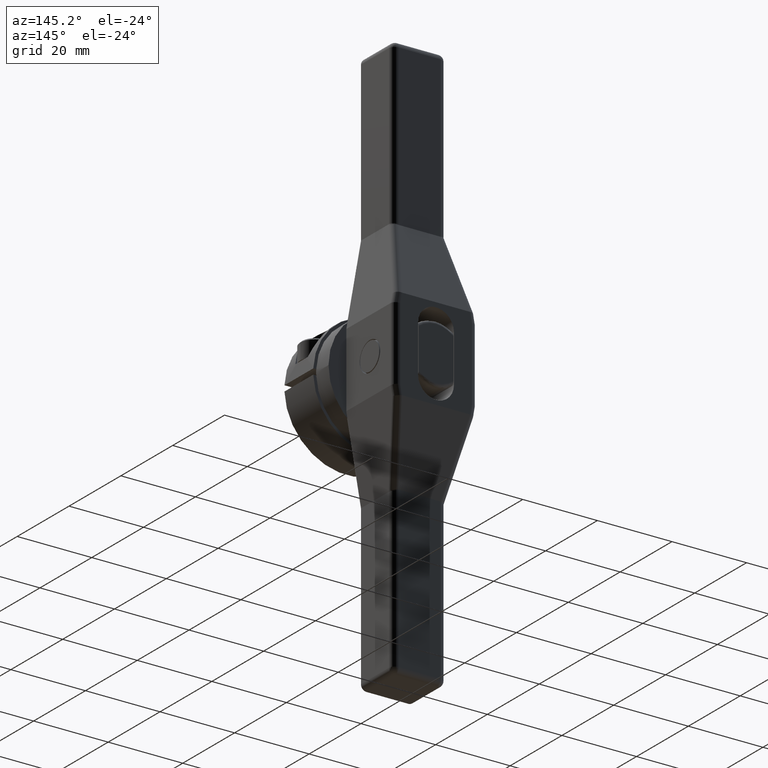
[diagram: clean part render]
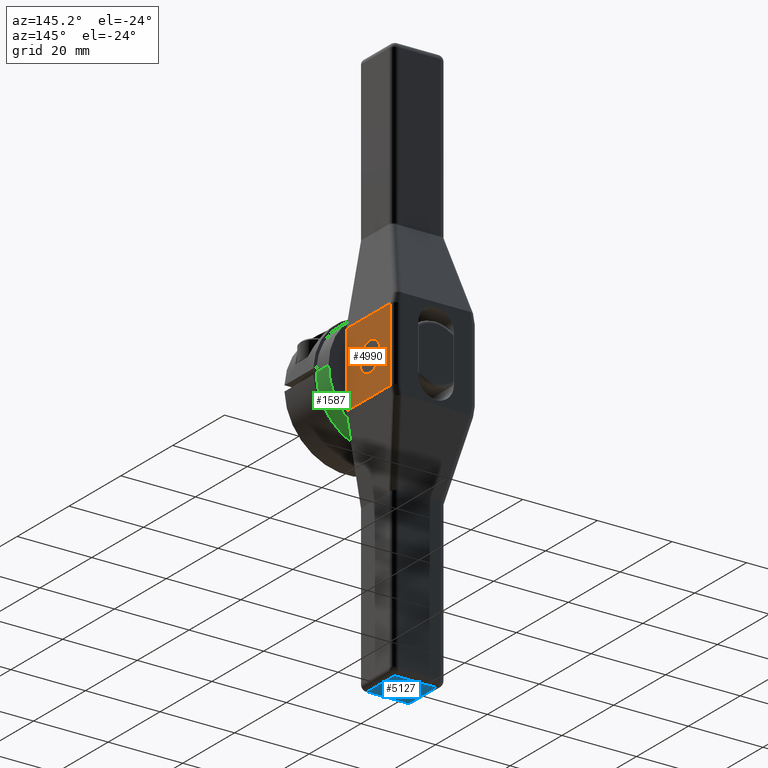
[diagram: same view with three faces highlighted in distinct colors, each labeled with its STEP entity id]
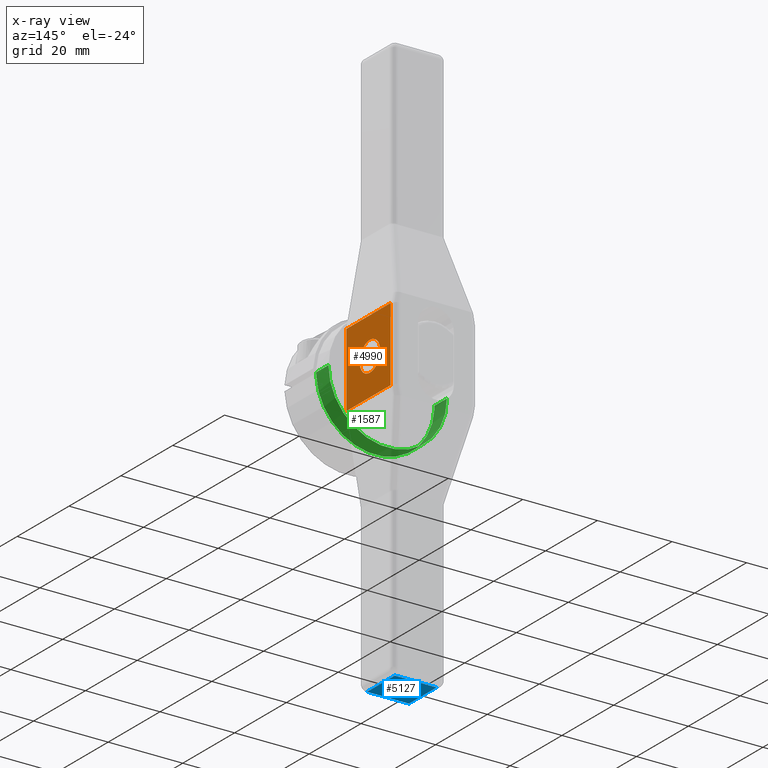
[diagram: x-ray of the same camera — body ghosted, the three highlighted faces saturated]
A machine part, auxiliary view with three faces highlighted in distinct colors.
The next image is the same camera in x-ray (body ghosted, the three faces saturated) — at least one of them is partly hidden behind the body in this view.
Their STEP definitions:

[orange] entity #4990 — the highlighted planar face has unit normal (-1, 0, 0).
#3066=DIRECTION('',(0.E0,0.E0,1.E0));
#3067=VECTOR('',#3066,7.797627586558E-1);
#3068=CARTESIAN_POINT('',(4.375E-1,2.E-2,-3.898813793279E-1));
#3069=LINE('',#3068,#3067);
#3296=DIRECTION('',(0.E0,1.E0,0.E0));
#3297=VECTOR('',#3296,6.7E-1);
#3298=CARTESIAN_POINT('',(4.375E-1,2.E-2,3.898813793279E-1));
#3299=LINE('',#3298,#3297);
#3491=DIRECTION('',(0.E0,0.E0,-1.E0));
#3492=VECTOR('',#3491,7.797627586558E-1);
#3493=CARTESIAN_POINT('',(4.375E-1,6.9E-1,3.898813793279E-1));
#3494=LINE('',#3493,#3492);
#3674=CARTESIAN_POINT('',(4.375E-1,3.75E-1,0.E0));
#3675=DIRECTION('',(1.E0,0.E0,0.E0));
#3676=DIRECTION('',(0.E0,0.E0,-1.E0));
#3677=AXIS2_PLACEMENT_3D('',#3674,#3675,#3676);
#3682=CARTESIAN_POINT('',(4.375E-1,3.75E-1,0.E0));
#3683=DIRECTION('',(1.E0,0.E0,0.E0));
#3684=DIRECTION('',(0.E0,0.E0,1.E0));
#3685=AXIS2_PLACEMENT_3D('',#3682,#3683,#3684);
#3690=DIRECTION('',(0.E0,1.E0,0.E0));
#3691=VECTOR('',#3690,6.7E-1);
#3692=CARTESIAN_POINT('',(4.375E-1,2.E-2,-3.898813793279E-1));
#3693=LINE('',#3692,#3691);
#3995=CARTESIAN_POINT('',(4.375E-1,3.75E-1,-1.5575E-1));
#3996=VERTEX_POINT('',#3995);
#3999=CARTESIAN_POINT('',(4.375E-1,3.75E-1,1.5575E-1));
#4000=VERTEX_POINT('',#3999);
#4072=CARTESIAN_POINT('',(4.375E-1,6.9E-1,-3.898813793279E-1));
#4073=VERTEX_POINT('',#4072);
#4076=CARTESIAN_POINT('',(4.375E-1,6.9E-1,3.898813793279E-1));
#4077=VERTEX_POINT('',#4076);
#4143=CARTESIAN_POINT('',(4.375E-1,2.E-2,-3.898813793279E-1));
#4144=VERTEX_POINT('',#4143);
#4147=CARTESIAN_POINT('',(4.375E-1,2.E-2,3.898813793279E-1));
#4148=VERTEX_POINT('',#4147);
#4974=CARTESIAN_POINT('',(4.375E-1,0.E0,3.898813793279E-1));
#4975=DIRECTION('',(-1.E0,0.E0,0.E0));
#4976=DIRECTION('',(0.E0,0.E0,-1.E0));
#4977=AXIS2_PLACEMENT_3D('',#4974,#4975,#4976);
#4978=PLANE('',#4977);
#4979=ORIENTED_EDGE('',*,*,#4521,.T.);
#4980=ORIENTED_EDGE('',*,*,#4684,.T.);
#4981=ORIENTED_EDGE('',*,*,#4828,.T.);
#4983=ORIENTED_EDGE('',*,*,#4982,.F.);
#4984=EDGE_LOOP('',(#4979,#4980,#4981,#4983));
#4985=FACE_OUTER_BOUND('',#4984,.F.);
#4986=ORIENTED_EDGE('',*,*,#4928,.T.);
#4987=ORIENTED_EDGE('',*,*,#4956,.T.);
#4988=EDGE_LOOP('',(#4986,#4987));
#4989=FACE_BOUND('',#4988,.F.);
#4990=ADVANCED_FACE('',(#4985,#4989),#4978,.F.);
#3678=CIRCLE('',#3677,1.5575E-1);
#3686=CIRCLE('',#3685,1.5575E-1);
#4521=EDGE_CURVE('',#4144,#4148,#3069,.T.);
#4684=EDGE_CURVE('',#4148,#4077,#3299,.T.);
#4828=EDGE_CURVE('',#4077,#4073,#3494,.T.);
#4928=EDGE_CURVE('',#3996,#4000,#3678,.T.);
#4956=EDGE_CURVE('',#4000,#3996,#3686,.T.);
#4982=EDGE_CURVE('',#4144,#4073,#3693,.T.);

[blue] entity #5127 — the highlighted planar face has unit normal (0, 0, -1).
#2948=DIRECTION('',(1.E0,0.E0,0.E0));
#2949=VECTOR('',#2948,4.419999999909E-1);
#2950=CARTESIAN_POINT('',(-2.209999999808E-1,2.E-2,-3.E0));
#2951=LINE('',#2950,#2949);
#3797=DIRECTION('',(-4.574065993693E-11,1.E0,0.E0));
#3798=VECTOR('',#3797,4.2E-1);
#3799=CARTESIAN_POINT('',(-2.209999999808E-1,2.E-2,-3.E0));
#3800=LINE('',#3799,#3798);
#3804=DIRECTION('',(-2.402159159418E-11,1.E0,0.E0));
#3805=VECTOR('',#3804,4.2E-1);
#3806=CARTESIAN_POINT('',(2.210000000101E-1,2.E-2,-3.E0));
#3807=LINE('',#3806,#3805);
#3869=DIRECTION('',(1.E0,0.E0,0.E0));
#3870=VECTOR('',#3869,4.42E-1);
#3871=CARTESIAN_POINT('',(-2.21E-1,4.4E-1,-3.E0));
#3872=LINE('',#3871,#3870);
#4048=CARTESIAN_POINT('',(-2.21E-1,4.4E-1,-3.E0));
#4049=CARTESIAN_POINT('',(2.21E-1,4.4E-1,-3.E0));
#4050=VERTEX_POINT('',#4048);
#4051=VERTEX_POINT('',#4049);
#4127=CARTESIAN_POINT('',(-2.21E-1,2.E-2,-3.E0));
#4128=VERTEX_POINT('',#4127);
#4131=CARTESIAN_POINT('',(2.210000000101E-1,2.E-2,-3.E0));
#4132=VERTEX_POINT('',#4131);
#5114=CARTESIAN_POINT('',(2.21E-1,0.E0,-3.E0));
#5115=DIRECTION('',(0.E0,0.E0,-1.E0));
#5116=DIRECTION('',(-1.E0,0.E0,0.E0));
#5117=AXIS2_PLACEMENT_3D('',#5114,#5115,#5116);
#5118=PLANE('',#5117);
#5119=ORIENTED_EDGE('',*,*,#4465,.T.);
#5121=ORIENTED_EDGE('',*,*,#5120,.T.);
#5123=ORIENTED_EDGE('',*,*,#5122,.F.);
#5124=ORIENTED_EDGE('',*,*,#5106,.F.);
#5125=EDGE_LOOP('',(#5119,#5121,#5123,#5124));
#5126=FACE_OUTER_BOUND('',#5125,.F.);
#5127=ADVANCED_FACE('',(#5126),#5118,.T.);
#4465=EDGE_CURVE('',#4128,#4132,#2951,.T.);
#5106=EDGE_CURVE('',#4128,#4050,#3800,.T.);
#5120=EDGE_CURVE('',#4132,#4051,#3807,.T.);
#5122=EDGE_CURVE('',#4050,#4051,#3872,.T.);

[green] entity #1587 — the highlighted cylindrical surface (partial cylindrical patch) has radius 15.875 mm, axis along (0, 1, 0).
#231=CARTESIAN_POINT('',(0.E0,2.19E-1,0.E0));
#232=DIRECTION('',(0.E0,1.E0,0.E0));
#233=DIRECTION('',(1.E0,0.E0,0.E0));
#234=AXIS2_PLACEMENT_3D('',#231,#232,#233);
#236=CARTESIAN_POINT('',(0.E0,2.19E-1,0.E0));
#237=DIRECTION('',(0.E0,1.E0,0.E0));
#238=DIRECTION('',(-9.988473356825E-1,0.E0,-4.8E-2));
#239=AXIS2_PLACEMENT_3D('',#236,#237,#238);
#298=CARTESIAN_POINT('',(0.E0,2.19E-1,0.E0));
#299=DIRECTION('',(0.E0,1.E0,0.E0));
#300=DIRECTION('',(9.988473356825E-1,0.E0,-4.8E-2));
#301=AXIS2_PLACEMENT_3D('',#298,#299,#300);
#334=DIRECTION('',(0.E0,1.E0,0.E0));
#335=VECTOR('',#334,1.88E-1);
#336=CARTESIAN_POINT('',(6.25E-1,2.19E-1,0.E0));
#337=LINE('',#336,#335);
#338=DIRECTION('',(0.E0,1.E0,0.E0));
#339=VECTOR('',#338,1.88E-1);
#340=CARTESIAN_POINT('',(-6.25E-1,2.19E-1,0.E0));
#341=LINE('',#340,#339);
#342=CARTESIAN_POINT('',(0.E0,4.07E-1,0.E0));
#343=DIRECTION('',(0.E0,1.E0,0.E0));
#344=DIRECTION('',(1.E0,0.E0,0.E0));
#345=AXIS2_PLACEMENT_3D('',#342,#343,#344);
#1176=CARTESIAN_POINT('',(6.25E-1,4.07E-1,0.E0));
#1177=CARTESIAN_POINT('',(-6.25E-1,4.07E-1,0.E0));
#1178=VERTEX_POINT('',#1176);
#1179=VERTEX_POINT('',#1177);
#1180=CARTESIAN_POINT('',(6.25E-1,2.19E-1,0.E0));
#1181=VERTEX_POINT('',#1180);
#1182=CARTESIAN_POINT('',(-6.25E-1,2.19E-1,0.E0));
#1183=VERTEX_POINT('',#1182);
#1192=CARTESIAN_POINT('',(6.242795848016E-1,2.19E-1,-3.E-2));
#1193=CARTESIAN_POINT('',(-6.242795848016E-1,2.19E-1,-3.E-2));
#1194=VERTEX_POINT('',#1192);
#1195=VERTEX_POINT('',#1193);
#1571=CARTESIAN_POINT('',(0.E0,2.19E-1,0.E0));
#1572=DIRECTION('',(0.E0,1.E0,0.E0));
#1573=DIRECTION('',(1.E0,0.E0,0.E0));
#1574=AXIS2_PLACEMENT_3D('',#1571,#1572,#1573);
#1575=CYLINDRICAL_SURFACE('',#1574,6.25E-1);
#1576=ORIENTED_EDGE('',*,*,#1546,.F.);
#1577=ORIENTED_EDGE('',*,*,#1442,.F.);
#1579=ORIENTED_EDGE('',*,*,#1578,.T.);
#1581=ORIENTED_EDGE('',*,*,#1580,.T.);
#1583=ORIENTED_EDGE('',*,*,#1582,.F.);
#1584=ORIENTED_EDGE('',*,*,#1457,.F.);
#1585=EDGE_LOOP('',(#1576,#1577,#1579,#1581,#1583,#1584));
#1586=FACE_OUTER_BOUND('',#1585,.F.);
#1587=ADVANCED_FACE('',(#1586),#1575,.T.);
#235=CIRCLE('',#234,6.25E-1);
#240=CIRCLE('',#239,6.25E-1);
#302=CIRCLE('',#301,6.25E-1);
#346=CIRCLE('',#345,6.25E-1);
#1442=EDGE_CURVE('',#1181,#1194,#235,.T.);
#1457=EDGE_CURVE('',#1195,#1183,#240,.T.);
#1546=EDGE_CURVE('',#1194,#1195,#302,.T.);
#1578=EDGE_CURVE('',#1181,#1178,#337,.T.);
#1580=EDGE_CURVE('',#1178,#1179,#346,.T.);
#1582=EDGE_CURVE('',#1183,#1179,#341,.T.);